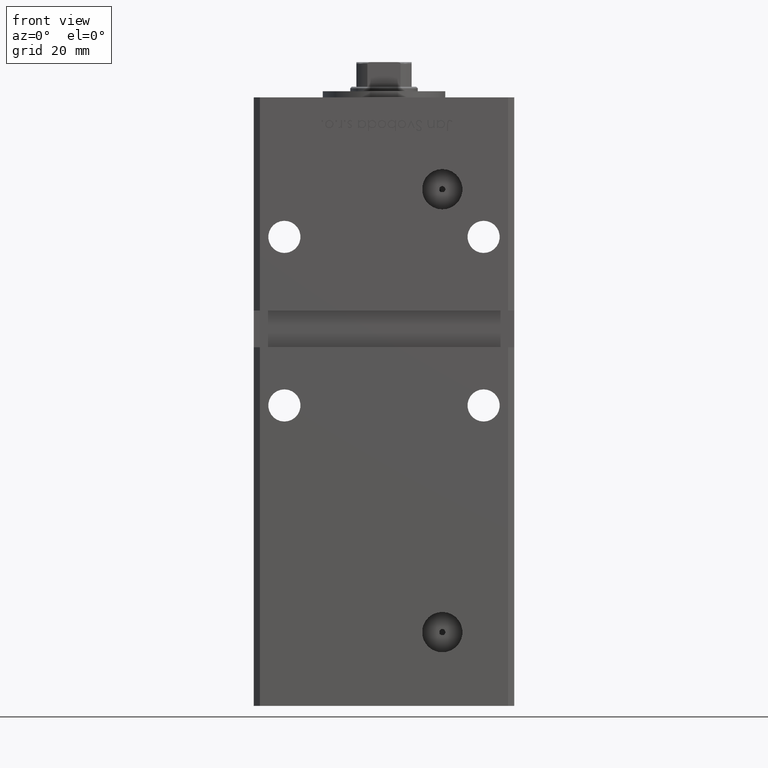
[diagram: clean part render]
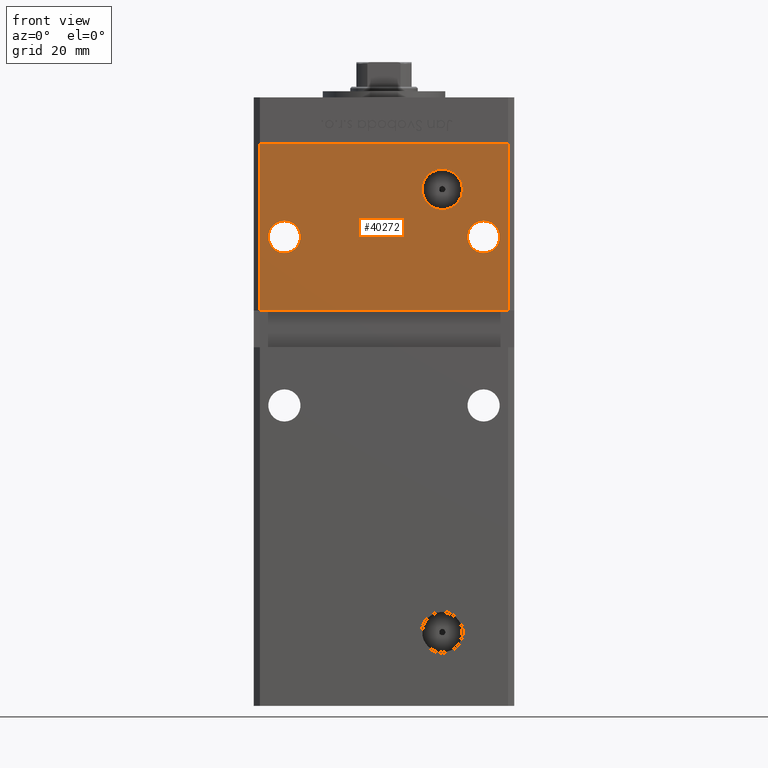
[diagram: same view with one face highlighted and labeled with its STEP entity id]
A machine part, front view. The second image highlights one B-rep face of the part: STEP entity #40272.
In plain terms, the highlighted planar face has unit normal (0, 1, 0).
Its self-contained STEP definition (entity closure, byte-faithful):
#306 = EDGE_LOOP ( 'NONE', ( #34015, #17111 ) ) ;
#578 = AXIS2_PLACEMENT_3D ( 'NONE', #5610, #46760, #37164 ) ;
#686 = EDGE_CURVE ( 'NONE', #35888, #13215, #29445, .T. ) ;
#1222 = LINE ( 'NONE', #30811, #48495 ) ;
#1429 = CIRCLE ( 'NONE', #578, 6.580000000000002736 ) ;
#2131 = CARTESIAN_POINT ( 'NONE',  ( 32.50000000000000000, -37.50000000000000711, 132.7500000000000000 ) ) ;
#2146 = ORIENTED_EDGE ( 'NONE', *, *, #21781, .T. ) ;
#2479 = FACE_BOUND ( 'NONE', #12275, .T. ) ;
#2513 = DIRECTION ( 'NONE',  ( 0.000000000000000000, 1.000000000000000000, 0.000000000000000000 ) ) ;
#2792 = EDGE_CURVE ( 'NONE', #31410, #26732, #23501, .T. ) ;
#4583 = CIRCLE ( 'NONE', #17469, 5.250000000000004441 ) ;
#4996 = CIRCLE ( 'NONE', #21343, 6.580000000000002736 ) ;
#5610 = CARTESIAN_POINT ( 'NONE',  ( 18.99999999999997158, -37.50000000000000711, 153.5000000000000000 ) ) ;
#5757 = CARTESIAN_POINT ( 'NONE',  ( 32.50000000000000000, -37.50000000000000711, 138.0000000000000000 ) ) ;
#5966 = EDGE_LOOP ( 'NONE', ( #9137, #38462 ) ) ;
#5987 = FACE_OUTER_BOUND ( 'NONE', #52453, .T. ) ;
#6439 = VERTEX_POINT ( 'NONE', #8003 ) ;
#8003 = CARTESIAN_POINT ( 'NONE',  ( -40.49999999999998579, -37.50000000000000711, 168.5000000000000000 ) ) ;
#9137 = ORIENTED_EDGE ( 'NONE', *, *, #686, .T. ) ;
#9152 = DIRECTION ( 'NONE',  ( -0.000000000000000000, -0.000000000000000000, -1.000000000000000000 ) ) ;
#9185 = DIRECTION ( 'NONE',  ( -0.000000000000000000, -0.000000000000000000, -1.000000000000000000 ) ) ;
#9285 = LINE ( 'NONE', #37805, #33460 ) ;
#9978 = VECTOR ( 'NONE', #9152, 1000.000000000000000 ) ;
#11049 = CARTESIAN_POINT ( 'NONE',  ( -40.49999999999998579, -37.50000000000000711, 114.0000000000000142 ) ) ;
#11524 = DIRECTION ( 'NONE',  ( 0.000000000000000000, 1.000000000000000000, 0.000000000000000000 ) ) ;
#11745 = VECTOR ( 'NONE', #9185, 1000.000000000000000 ) ;
#12275 = EDGE_LOOP ( 'NONE', ( #2146, #43773 ) ) ;
#12981 = CARTESIAN_POINT ( 'NONE',  ( -40.49999999999998579, -37.50000000000000711, 168.5000000000000000 ) ) ;
#13215 = VERTEX_POINT ( 'NONE', #21152 ) ;
#13818 = EDGE_CURVE ( 'NONE', #36339, #23992, #16175, .T. ) ;
#14230 = DIRECTION ( 'NONE',  ( 0.000000000000000000, 1.000000000000000000, 0.000000000000000000 ) ) ;
#14385 = DIRECTION ( 'NONE',  ( 0.000000000000000000, 0.000000000000000000, 1.000000000000000000 ) ) ;
#16175 = LINE ( 'NONE', #16443, #9978 ) ;
#16443 = CARTESIAN_POINT ( 'NONE',  ( 40.49999999999998579, -37.50000000000000711, 168.5000000000000000 ) ) ;
#17111 = ORIENTED_EDGE ( 'NONE', *, *, #35728, .T. ) ;
#17469 = AXIS2_PLACEMENT_3D ( 'NONE', #19337, #11524, #44060 ) ;
#18081 = LINE ( 'NONE', #12981, #11745 ) ;
#18227 = CARTESIAN_POINT ( 'NONE',  ( 40.49999999999997868, -37.50000000000000711, 114.0000000000000142 ) ) ;
#18911 = FACE_BOUND ( 'NONE', #5966, .T. ) ;
#19251 = CARTESIAN_POINT ( 'NONE',  ( 18.99999999999997158, -37.50000000000000711, 160.0800000000000125 ) ) ;
#19264 = ORIENTED_EDGE ( 'NONE', *, *, #13818, .F. ) ;
#19337 = CARTESIAN_POINT ( 'NONE',  ( -32.50000000000000000, -37.50000000000000711, 138.0000000000000000 ) ) ;
#20024 = AXIS2_PLACEMENT_3D ( 'NONE', #35581, #46883, #26981 ) ;
#21152 = CARTESIAN_POINT ( 'NONE',  ( -32.50000000000000000, -37.50000000000000711, 132.7500000000000000 ) ) ;
#21158 = DIRECTION ( 'NONE',  ( -1.000000000000000000, -0.000000000000000000, -0.000000000000000000 ) ) ;
#21343 = AXIS2_PLACEMENT_3D ( 'NONE', #21633, #45298, #33197 ) ;
#21633 = CARTESIAN_POINT ( 'NONE',  ( 18.99999999999997158, -37.50000000000000711, 153.5000000000000000 ) ) ;
#21781 = EDGE_CURVE ( 'NONE', #26732, #31410, #44700, .T. ) ;
#22425 = DIRECTION ( 'NONE',  ( 0.000000000000000000, -0.000000000000000000, 1.000000000000000000 ) ) ;
#23501 = CIRCLE ( 'NONE', #40694, 5.250000000000004441 ) ;
#23986 = ORIENTED_EDGE ( 'NONE', *, *, #47951, .F. ) ;
#23992 = VERTEX_POINT ( 'NONE', #18227 ) ;
#26180 = FACE_BOUND ( 'NONE', #306, .T. ) ;
#26732 = VERTEX_POINT ( 'NONE', #46578 ) ;
#26964 = ORIENTED_EDGE ( 'NONE', *, *, #38905, .F. ) ;
#26981 = DIRECTION ( 'NONE',  ( 0.000000000000000000, 0.000000000000000000, 1.000000000000000000 ) ) ;
#29445 = CIRCLE ( 'NONE', #20024, 5.250000000000004441 ) ;
#29693 = VERTEX_POINT ( 'NONE', #11049 ) ;
#30811 = CARTESIAN_POINT ( 'NONE',  ( -40.49999999999998579, -37.50000000000000711, 168.5000000000000000 ) ) ;
#31410 = VERTEX_POINT ( 'NONE', #2131 ) ;
#31815 = AXIS2_PLACEMENT_3D ( 'NONE', #5757, #2513, #14385 ) ;
#33197 = DIRECTION ( 'NONE',  ( 0.000000000000000000, 0.000000000000000000, -1.000000000000000000 ) ) ;
#33460 = VECTOR ( 'NONE', #21158, 1000.000000000000000 ) ;
#34015 = ORIENTED_EDGE ( 'NONE', *, *, #52056, .T. ) ;
#35309 = DIRECTION ( 'NONE',  ( 0.000000000000000000, 1.000000000000000000, 0.000000000000000000 ) ) ;
#35581 = CARTESIAN_POINT ( 'NONE',  ( -32.50000000000000000, -37.50000000000000711, 138.0000000000000000 ) ) ;
#35728 = EDGE_CURVE ( 'NONE', #40898, #51911, #4996, .T. ) ;
#35888 = VERTEX_POINT ( 'NONE', #43843 ) ;
#36075 = AXIS2_PLACEMENT_3D ( 'NONE', #42585, #35309, #22425 ) ;
#36339 = VERTEX_POINT ( 'NONE', #39684 ) ;
#37164 = DIRECTION ( 'NONE',  ( 0.000000000000000000, 0.000000000000000000, -1.000000000000000000 ) ) ;
#37633 = CARTESIAN_POINT ( 'NONE',  ( 32.50000000000000000, -37.50000000000000711, 138.0000000000000000 ) ) ;
#37805 = CARTESIAN_POINT ( 'NONE',  ( -42.49999999999998579, -37.50000000000000711, 114.0000000000000142 ) ) ;
#38462 = ORIENTED_EDGE ( 'NONE', *, *, #45679, .T. ) ;
#38905 = EDGE_CURVE ( 'NONE', #23992, #29693, #9285, .T. ) ;
#39684 = CARTESIAN_POINT ( 'NONE',  ( 40.49999999999998579, -37.50000000000000711, 168.5000000000000000 ) ) ;
#40272 = ADVANCED_FACE ( 'NONE', ( #2479, #18911, #5987, #26180 ), #43647, .F. ) ;
#40312 = CARTESIAN_POINT ( 'NONE',  ( 18.99999999999997158, -37.50000000000000711, 146.9199999999999875 ) ) ;
#40694 = AXIS2_PLACEMENT_3D ( 'NONE', #37633, #14230, #46224 ) ;
#40898 = VERTEX_POINT ( 'NONE', #19251 ) ;
#42585 = CARTESIAN_POINT ( 'NONE',  ( -40.49999999999998579, -37.50000000000000711, 168.5000000000000000 ) ) ;
#43647 = PLANE ( 'NONE',  #36075 ) ;
#43773 = ORIENTED_EDGE ( 'NONE', *, *, #2792, .T. ) ;
#43843 = CARTESIAN_POINT ( 'NONE',  ( -32.50000000000000000, -37.50000000000000711, 143.2500000000000284 ) ) ;
#44060 = DIRECTION ( 'NONE',  ( 0.000000000000000000, 0.000000000000000000, 1.000000000000000000 ) ) ;
#44223 = ORIENTED_EDGE ( 'NONE', *, *, #52849, .T. ) ;
#44700 = CIRCLE ( 'NONE', #31815, 5.250000000000004441 ) ;
#45298 = DIRECTION ( 'NONE',  ( -0.000000000000000000, 1.000000000000000000, -0.000000000000000000 ) ) ;
#45679 = EDGE_CURVE ( 'NONE', #13215, #35888, #4583, .T. ) ;
#46224 = DIRECTION ( 'NONE',  ( 0.000000000000000000, 0.000000000000000000, 1.000000000000000000 ) ) ;
#46578 = CARTESIAN_POINT ( 'NONE',  ( 32.50000000000000000, -37.50000000000000711, 143.2500000000000284 ) ) ;
#46760 = DIRECTION ( 'NONE',  ( -0.000000000000000000, 1.000000000000000000, -0.000000000000000000 ) ) ;
#46883 = DIRECTION ( 'NONE',  ( 0.000000000000000000, 1.000000000000000000, 0.000000000000000000 ) ) ;
#47951 = EDGE_CURVE ( 'NONE', #6439, #36339, #1222, .T. ) ;
#48495 = VECTOR ( 'NONE', #50721, 1000.000000000000000 ) ;
#50721 = DIRECTION ( 'NONE',  ( 1.000000000000000000, 0.000000000000000000, 0.000000000000000000 ) ) ;
#51911 = VERTEX_POINT ( 'NONE', #40312 ) ;
#52056 = EDGE_CURVE ( 'NONE', #51911, #40898, #1429, .T. ) ;
#52453 = EDGE_LOOP ( 'NONE', ( #44223, #26964, #19264, #23986 ) ) ;
#52849 = EDGE_CURVE ( 'NONE', #6439, #29693, #18081, .T. ) ;